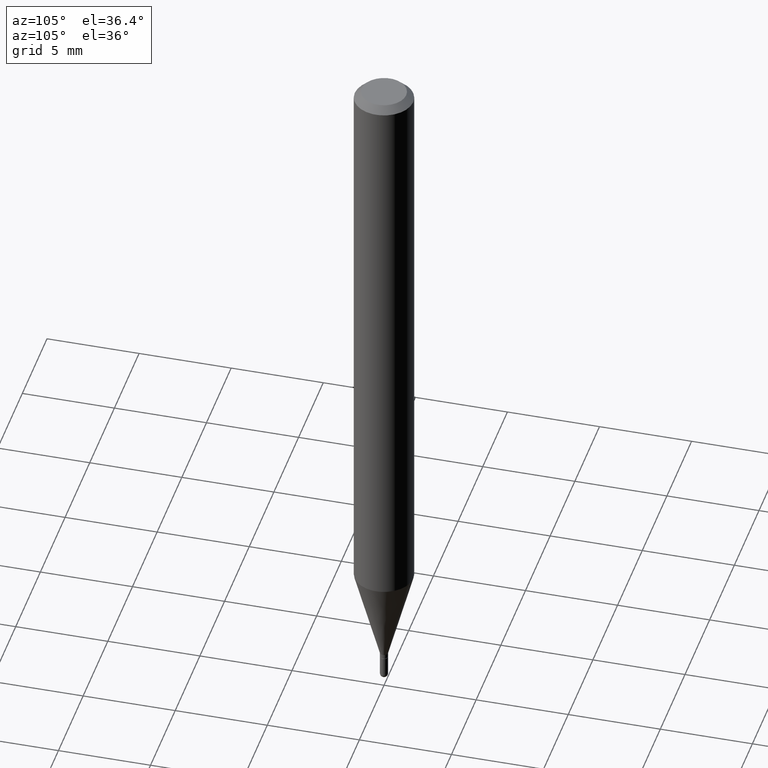
[diagram: clean part render]
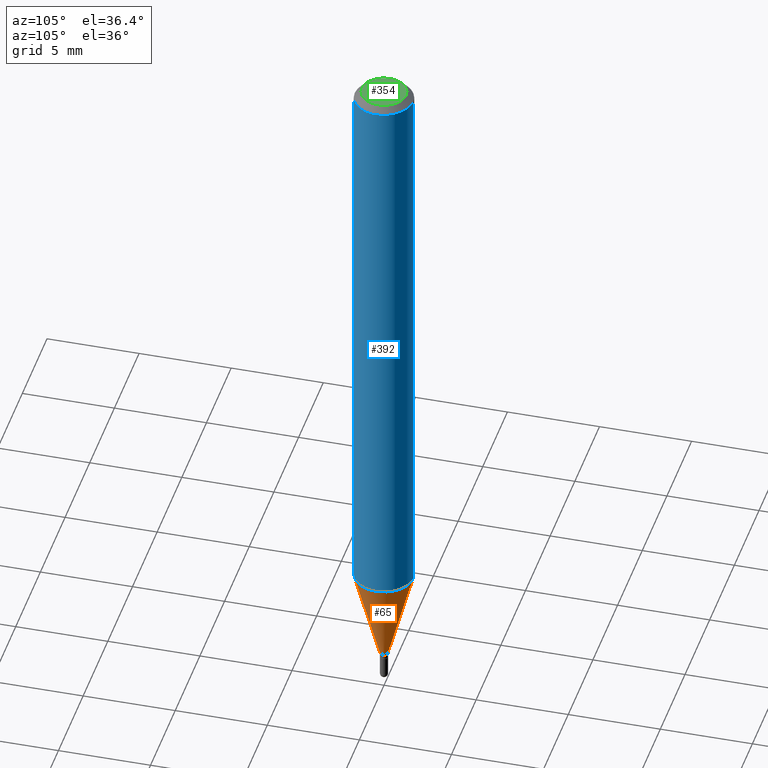
[diagram: same view with three faces highlighted in distinct colors, each labeled with its STEP entity id]
A machine part, auxiliary view with three faces highlighted in distinct colors.
Their STEP definitions:

[orange] entity #65 — the highlighted conical surface has half-angle 15 deg.
#4 = VECTOR ( 'NONE', #246, 39.37007874015748854 ) ;
#11 = AXIS2_PLACEMENT_3D ( 'NONE', #419, #53, #213 ) ;
#20 = LINE ( 'NONE', #383, #4 ) ;
#34 = AXIS2_PLACEMENT_3D ( 'NONE', #328, #438, #365 ) ;
#50 = FACE_OUTER_BOUND ( 'NONE', #457, .T. ) ;
#53 = DIRECTION ( 'NONE',  ( -2.445462151224154742E-29, 3.491490869126048320E-15, 1.000000000000000000 ) ) ;
#65 = ADVANCED_FACE ( 'NONE', ( #50 ), #206, .T. ) ;
#69 = CIRCLE ( 'NONE', #34, 0.008499999999999924283 ) ;
#87 = ORIENTED_EDGE ( 'NONE', *, *, #121, .T. ) ;
#92 = CARTESIAN_POINT ( 'NONE',  ( 3.519020035611559591E-29, -5.024255360672383389E-15, -1.439000000000000057 ) ) ;
#99 = CARTESIAN_POINT ( 'NONE',  ( 4.440892098500927901E-16, 0.06249999999999569095, -1.237469256391281691 ) ) ;
#104 = VERTEX_POINT ( 'NONE', #99 ) ;
#111 = ORIENTED_EDGE ( 'NONE', *, *, #366, .T. ) ;
#112 = EDGE_CURVE ( 'NONE', #488, #104, #243, .T. ) ;
#114 = EDGE_CURVE ( 'NONE', #466, #488, #20, .T. ) ;
#121 = EDGE_CURVE ( 'NONE', #428, #104, #378, .T. ) ;
#167 = CARTESIAN_POINT ( 'NONE',  ( 6.039613253964316839E-17, 0.008499999999994900524, -1.439000000000000057 ) ) ;
#179 = AXIS2_PLACEMENT_3D ( 'NONE', #92, #252, #257 ) ;
#206 = CONICAL_SURFACE ( 'NONE', #179, 0.008499999999999924283, 0.2617993877991505181 ) ;
#213 = DIRECTION ( 'NONE',  ( -6.982962677686265922E-15, -1.000000000000000000, 4.370956789862821150E-15 ) ) ;
#221 = ORIENTED_EDGE ( 'NONE', *, *, #114, .F. ) ;
#243 = CIRCLE ( 'NONE', #11, 0.06250000000000000000 ) ;
#246 = DIRECTION ( 'NONE',  ( -1.807323732225331717E-15, -0.2588190451025184080, 0.9659258262890689783 ) ) ;
#252 = DIRECTION ( 'NONE',  ( -2.445462151224154742E-29, 3.491490869126048320E-15, 1.000000000000000000 ) ) ;
#257 = DIRECTION ( 'NONE',  ( -6.982962677686266711E-15, -1.000000000000000000, 0.000000000000000000 ) ) ;
#302 = DIRECTION ( 'NONE',  ( 1.839019923739601893E-15, 0.2588190451025252359, 0.9659258262890670910 ) ) ;
#313 = CARTESIAN_POINT ( 'NONE',  ( -4.364351673553615448E-16, -0.06250000000000432987, -1.237469256391281025 ) ) ;
#326 = VECTOR ( 'NONE', #302, 39.37007874015748854 ) ;
#328 = CARTESIAN_POINT ( 'NONE',  ( 3.519020035611559591E-29, -5.024255360672383389E-15, -1.439000000000000057 ) ) ;
#365 = DIRECTION ( 'NONE',  ( -6.982962677686266711E-15, -1.000000000000000000, 0.000000000000000000 ) ) ;
#366 = EDGE_CURVE ( 'NONE', #466, #428, #69, .T. ) ;
#378 = LINE ( 'NONE', #167, #326 ) ;
#383 = CARTESIAN_POINT ( 'NONE',  ( -5.935518276029754545E-17, -0.008500000000004949777, -1.439000000000000057 ) ) ;
#410 = ORIENTED_EDGE ( 'NONE', *, *, #112, .F. ) ;
#419 = CARTESIAN_POINT ( 'NONE',  ( 3.026184229808377887E-29, -4.320612609514359217E-15, -1.237469256391281247 ) ) ;
#428 = VERTEX_POINT ( 'NONE', #460 ) ;
#438 = DIRECTION ( 'NONE',  ( -2.445462151224154742E-29, 3.491490869126048320E-15, 1.000000000000000000 ) ) ;
#457 = EDGE_LOOP ( 'NONE', ( #111, #87, #410, #221 ) ) ;
#460 = CARTESIAN_POINT ( 'NONE',  ( 2.522426711948681826E-16, 0.008499999999994900524, -1.439000000000000057 ) ) ;
#466 = VERTEX_POINT ( 'NONE', #473 ) ;
#473 = CARTESIAN_POINT ( 'NONE',  ( -5.935518276029754545E-17, -0.008500000000004949777, -1.439000000000000057 ) ) ;
#488 = VERTEX_POINT ( 'NONE', #313 ) ;

[blue] entity #392 — the highlighted cylindrical surface (edge-blend (fillet) strip) has radius 1.5875 mm, axis along (-0, 0, 1).
#11 = AXIS2_PLACEMENT_3D ( 'NONE', #419, #53, #213 ) ;
#13 = CARTESIAN_POINT ( 'NONE',  ( -4.364351673553912750E-16, -0.06250000000000005551, -0.01499999999999954321 ) ) ;
#33 = CARTESIAN_POINT ( 'NONE',  ( 0.000000000000000000, 0.000000000000000000, 0.000000000000000000 ) ) ;
#40 = EDGE_CURVE ( 'NONE', #104, #280, #371, .T. ) ;
#53 = DIRECTION ( 'NONE',  ( -2.445462151224154742E-29, 3.491490869126048320E-15, 1.000000000000000000 ) ) ;
#64 = DIRECTION ( 'NONE',  ( -6.982962677686265922E-15, -1.000000000000000000, 3.483106191921935554E-15 ) ) ;
#70 = DIRECTION ( 'NONE',  ( -2.445462151224154742E-29, 3.491490869126048320E-15, 1.000000000000000000 ) ) ;
#95 = VERTEX_POINT ( 'NONE', #13 ) ;
#99 = CARTESIAN_POINT ( 'NONE',  ( 4.440892098500927901E-16, 0.06249999999999569095, -1.237469256391281691 ) ) ;
#104 = VERTEX_POINT ( 'NONE', #99 ) ;
#112 = EDGE_CURVE ( 'NONE', #488, #104, #243, .T. ) ;
#124 = DIRECTION ( 'NONE',  ( -2.445462151224155023E-29, 3.491490869126048320E-15, 1.000000000000000000 ) ) ;
#137 = LINE ( 'NONE', #143, #318 ) ;
#143 = CARTESIAN_POINT ( 'NONE',  ( -4.364351673553916201E-16, -0.06250000000000000000, 2.182181793203780200E-16 ) ) ;
#191 = CYLINDRICAL_SURFACE ( 'NONE', #218, 0.06250000000000000000 ) ;
#205 = ORIENTED_EDGE ( 'NONE', *, *, #374, .F. ) ;
#213 = DIRECTION ( 'NONE',  ( -6.982962677686265922E-15, -1.000000000000000000, 4.370956789862821150E-15 ) ) ;
#218 = AXIS2_PLACEMENT_3D ( 'NONE', #33, #70, #352 ) ;
#233 = ORIENTED_EDGE ( 'NONE', *, *, #409, .F. ) ;
#243 = CIRCLE ( 'NONE', #11, 0.06250000000000000000 ) ;
#249 = ORIENTED_EDGE ( 'NONE', *, *, #112, .T. ) ;
#265 = AXIS2_PLACEMENT_3D ( 'NONE', #316, #505, #64 ) ;
#280 = VERTEX_POINT ( 'NONE', #312 ) ;
#303 = DIRECTION ( 'NONE',  ( -2.445462151224155023E-29, 3.491490869126048320E-15, 1.000000000000000000 ) ) ;
#304 = EDGE_LOOP ( 'NONE', ( #249, #500, #233, #205 ) ) ;
#312 = CARTESIAN_POINT ( 'NONE',  ( 4.440892098500930859E-16, 0.06249999999999995143, -0.01499999999999997863 ) ) ;
#313 = CARTESIAN_POINT ( 'NONE',  ( -4.364351673553615448E-16, -0.06250000000000432987, -1.237469256391281025 ) ) ;
#316 = CARTESIAN_POINT ( 'NONE',  ( 3.668193226836173784E-31, -5.237236303688988910E-17, -0.01499999999999976179 ) ) ;
#318 = VECTOR ( 'NONE', #303, 39.37007874015748143 ) ;
#352 = DIRECTION ( 'NONE',  ( -6.982962677686265922E-15, -1.000000000000000000, 3.491490869126048320E-15 ) ) ;
#371 = LINE ( 'NONE', #511, #435 ) ;
#374 = EDGE_CURVE ( 'NONE', #488, #95, #137, .T. ) ;
#392 = ADVANCED_FACE ( 'NONE', ( #422 ), #191, .T. ) ;
#409 = EDGE_CURVE ( 'NONE', #95, #280, #461, .T. ) ;
#419 = CARTESIAN_POINT ( 'NONE',  ( 3.026184229808377887E-29, -4.320612609514359217E-15, -1.237469256391281247 ) ) ;
#422 = FACE_OUTER_BOUND ( 'NONE', #304, .T. ) ;
#435 = VECTOR ( 'NONE', #124, 39.37007874015748143 ) ;
#461 = CIRCLE ( 'NONE', #265, 0.06250000000000000000 ) ;
#488 = VERTEX_POINT ( 'NONE', #313 ) ;
#500 = ORIENTED_EDGE ( 'NONE', *, *, #40, .T. ) ;
#505 = DIRECTION ( 'NONE',  ( -2.445462151224154742E-29, 3.491490869126048320E-15, 1.000000000000000000 ) ) ;
#511 = CARTESIAN_POINT ( 'NONE',  ( 4.440892098500625669E-16, 0.06250000000000000000, -2.182181793203780200E-16 ) ) ;

[green] entity #354 — the highlighted planar face has unit normal (0, -0, -1).
#21 = CARTESIAN_POINT ( 'NONE',  ( 3.316907271900976096E-16, 0.04749999999999999362, -4.610126859532487999E-17 ) ) ;
#44 = CARTESIAN_POINT ( 'NONE',  ( 3.840629472727447874E-16, 0.04749999999999999362, 7.364327909283752044E-17 ) ) ;
#51 = DIRECTION ( 'NONE',  ( 2.445462151224154462E-29, -3.491490869126048320E-15, -1.000000000000000000 ) ) ;
#62 = PLANE ( 'NONE',  #193 ) ;
#129 = EDGE_LOOP ( 'NONE', ( #132, #154 ) ) ;
#131 = CIRCLE ( 'NONE', #172, 0.04749999999999999362 ) ;
#132 = ORIENTED_EDGE ( 'NONE', *, *, #340, .T. ) ;
#154 = ORIENTED_EDGE ( 'NONE', *, *, #467, .T. ) ;
#170 = VERTEX_POINT ( 'NONE', #211 ) ;
#172 = AXIS2_PLACEMENT_3D ( 'NONE', #184, #349, #465 ) ;
#184 = CARTESIAN_POINT ( 'NONE',  ( -5.856615183737140783E-45, 8.361739897616952739E-31, 2.394890953763248009E-16 ) ) ;
#193 = AXIS2_PLACEMENT_3D ( 'NONE', #21, #51, #381 ) ;
#207 = VERTEX_POINT ( 'NONE', #44 ) ;
#211 = CARTESIAN_POINT ( 'NONE',  ( -3.773273898774340269E-16, -0.04749999999999999362, 4.053349116598120813E-16 ) ) ;
#216 = DIRECTION ( 'NONE',  ( -6.982962677686266711E-15, -1.000000000000000000, 3.491490869126049109E-15 ) ) ;
#340 = EDGE_CURVE ( 'NONE', #207, #170, #350, .T. ) ;
#349 = DIRECTION ( 'NONE',  ( -2.445462151224154742E-29, 3.491490869126048320E-15, 1.000000000000000000 ) ) ;
#350 = CIRCLE ( 'NONE', #387, 0.04749999999999999362 ) ;
#354 = ADVANCED_FACE ( 'NONE', ( #414 ), #62, .F. ) ;
#381 = DIRECTION ( 'NONE',  ( 6.982962677686265922E-15, 1.000000000000000000, -3.491490869126048320E-15 ) ) ;
#387 = AXIS2_PLACEMENT_3D ( 'NONE', #495, #477, #216 ) ;
#414 = FACE_OUTER_BOUND ( 'NONE', #129, .T. ) ;
#465 = DIRECTION ( 'NONE',  ( -6.982962677686266711E-15, -1.000000000000000000, 3.491490869126049109E-15 ) ) ;
#467 = EDGE_CURVE ( 'NONE', #170, #207, #131, .T. ) ;
#477 = DIRECTION ( 'NONE',  ( -2.445462151224154742E-29, 3.491490869126048320E-15, 1.000000000000000000 ) ) ;
#495 = CARTESIAN_POINT ( 'NONE',  ( -5.856615183737140783E-45, 8.361739897616952739E-31, 2.394890953763248009E-16 ) ) ;